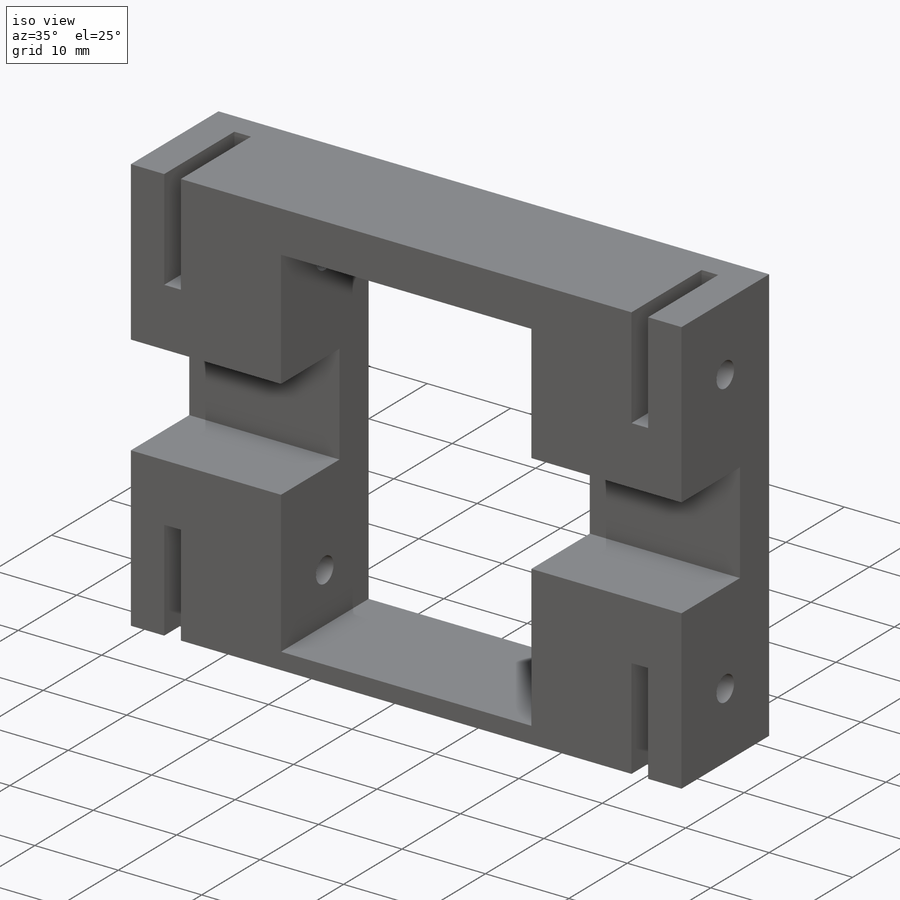
[diagram: iso view]
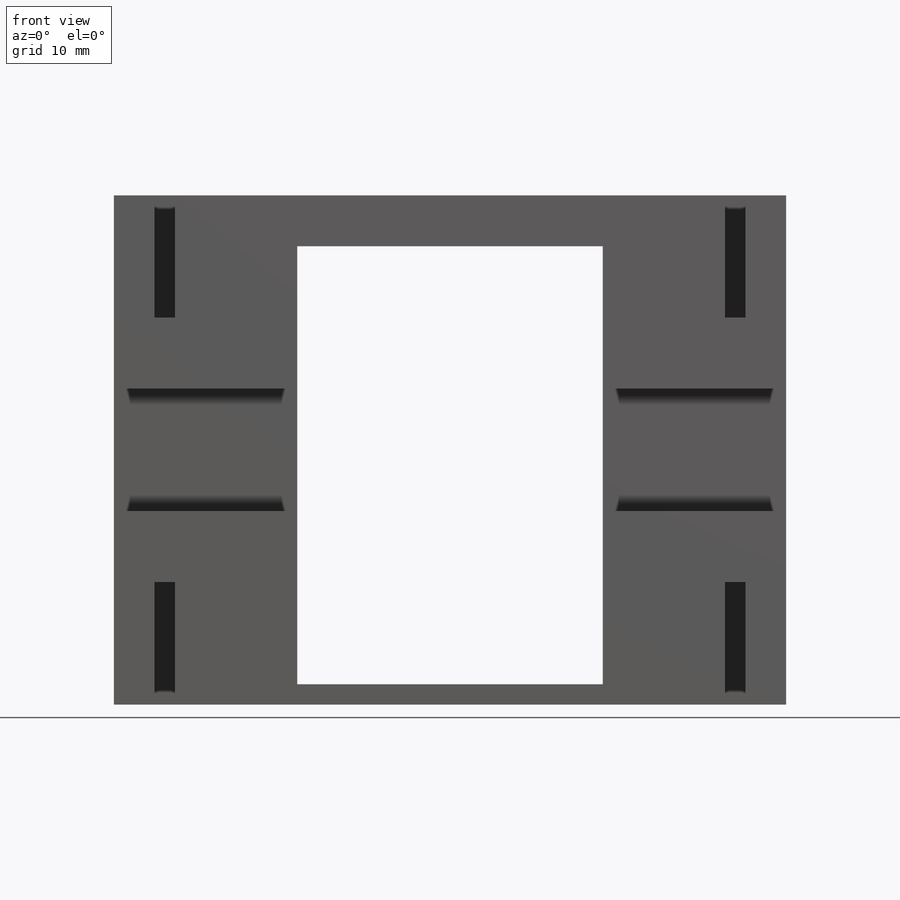
[diagram: front view]
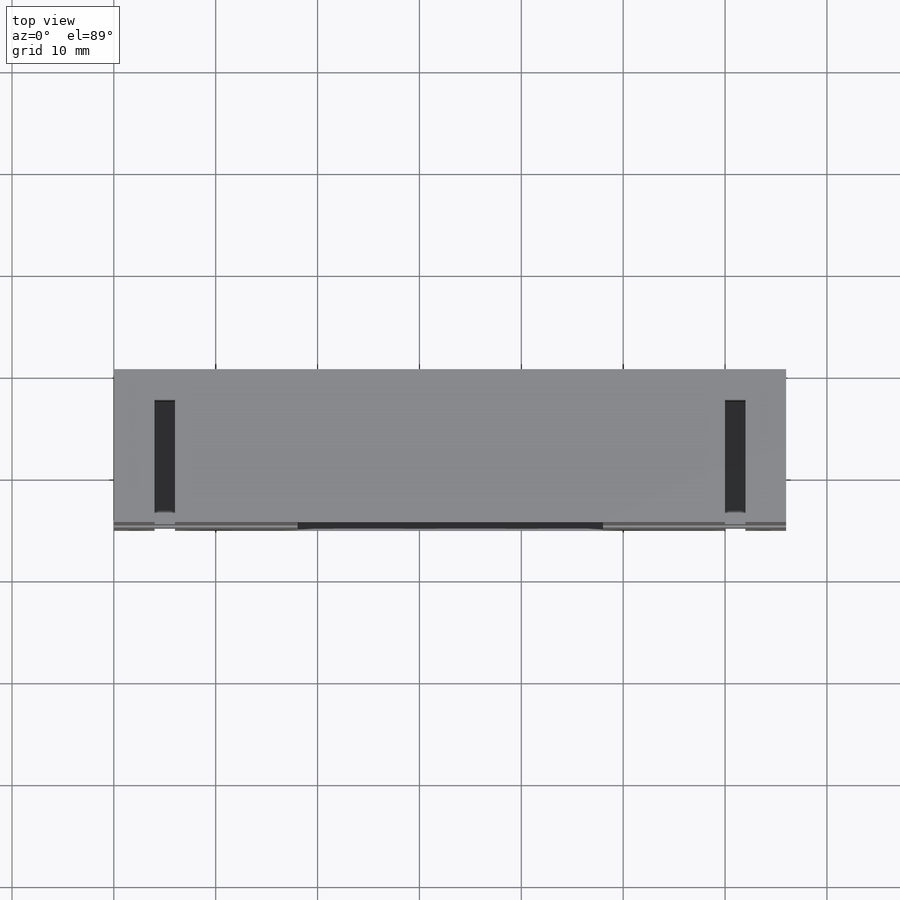
[diagram: top view]
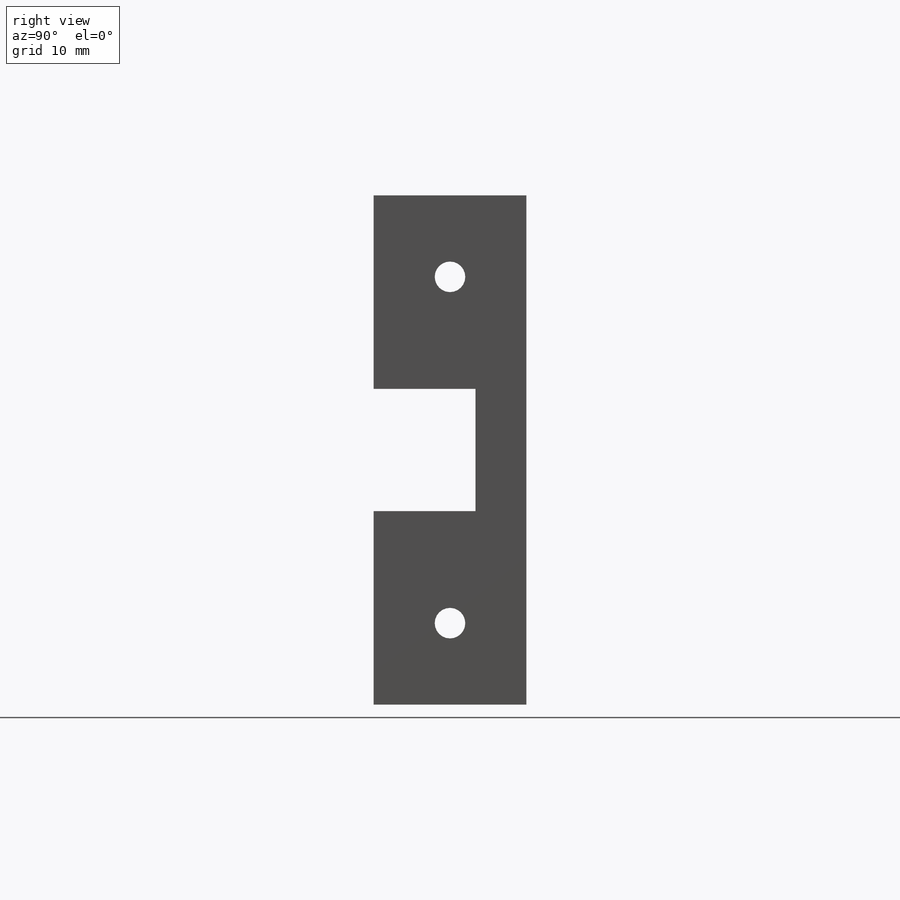
[diagram: right view]
SOLIDWORKS PART (.sldprt)
format: sldprt  version: not decoded by parser v0  size: 180,224 bytes
history: native  units: mm
features: plane x3, sketch x3, cut_extrude x2, material x1, extrude x1 (+13 scaffold rows collapsed)
feature tree (23):
  scaffold x13  (default folders/planes/origin — collapsed)
  material  "Material <sin especificar>"
  plane  "Alzado"
  plane  "Planta"
  plane  "Vista lateral"
  sketch  "Croquis1"  dims[D1=66.0mm D2=50.0mm D3=18.0mm D4=18.0mm D5=5.0mm D6=2.0mm]
  extrude  "Saliente-Extruir1"  Depth=15mm
  sketch  "Croquis2"  dims[D3=3.0mm D1=6.0mm D2=10.0mm D4=17.0mm D5=7.5mm]
  cut_extrude  "Cortar-Extruir1"  [1 undecoded]
  sketch  "Croquis3"  dims[D1=2.0mm D2=12.0mm D3=4.0mm]
  cut_extrude  "Cortar-Extruir2"  Depth=12mm
decode coverage: 5 of 6 modeling features carry decoded parameters
note: 1 parameter value undecoded
note: suppression state not decoded; provenance and decode notes live in map.json
